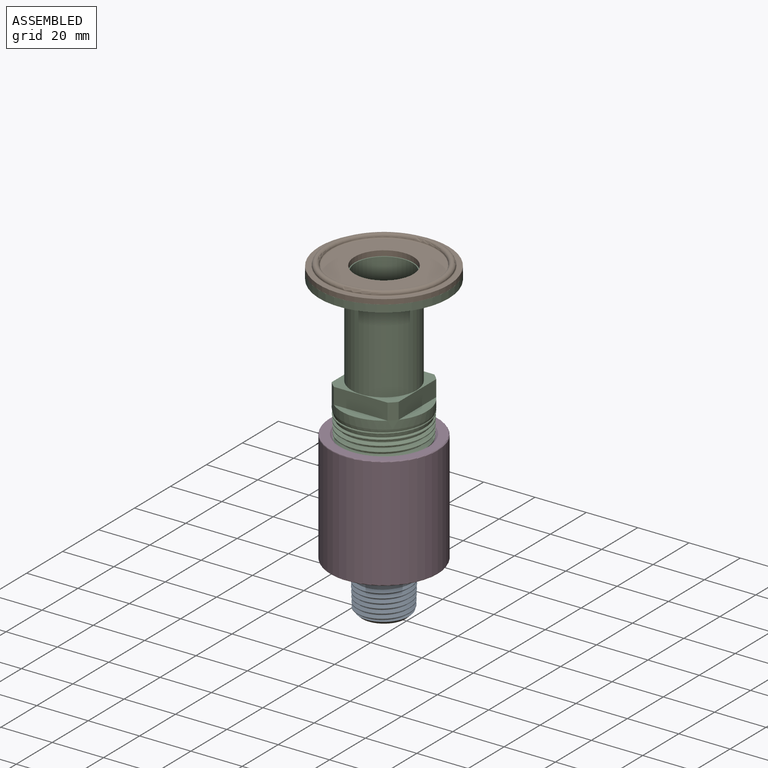
[diagram: assembled view]
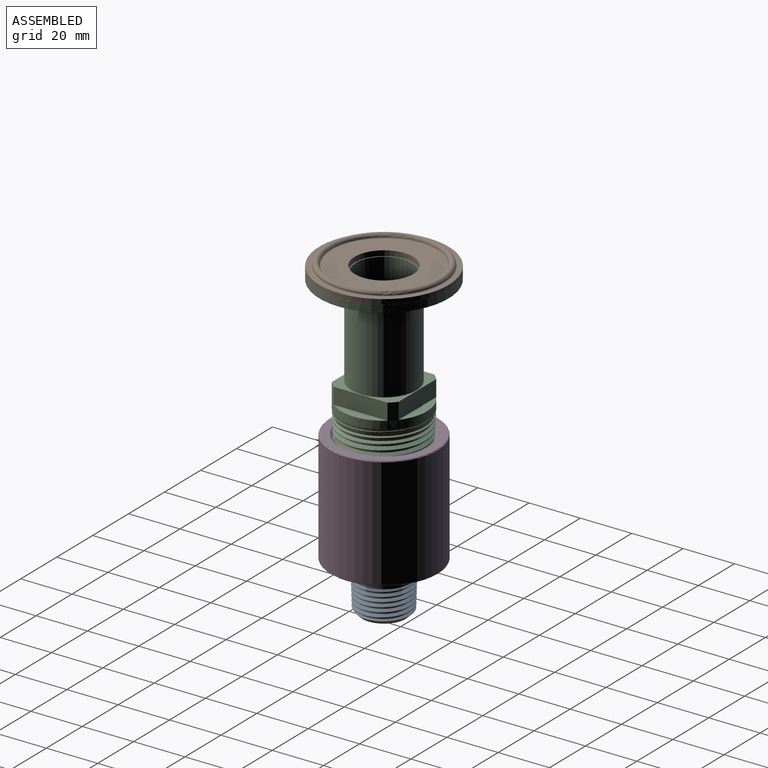
[diagram: assembled view, second angle]
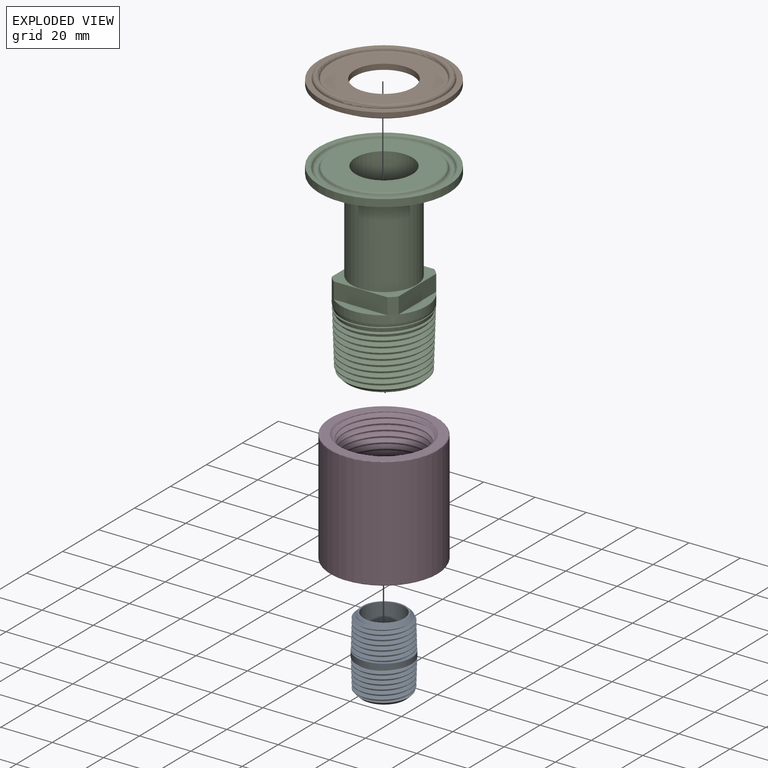
[diagram: exploded view]
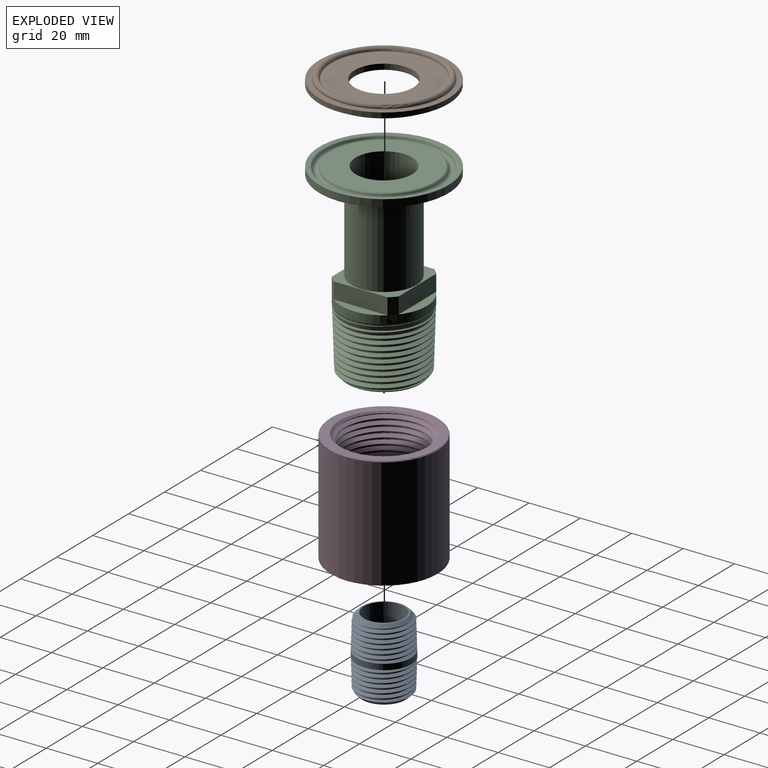
[diagram: exploded view, second angle]
ASSEMBLY  parts=4 mates=5
PART A: 20 faces, bbox 29.5x22x22 mm
  f0: cone r=10.67mm half-angle=1.5deg, axis (-1,0,0), area 85mm2, adj f1,f2,f5,f8
  f1: bspline ~21.27x21.25mm, area 554.9mm2, adj f0,f5,f6,f7,f8
  f2: bspline ~21.28x21.26mm, area 20.1mm2, adj f0,f3,f5,f8
  f3: bspline ~21.21x21.19mm, area 554.7mm2, adj f2,f5,f7,f8
  f4: plane 16.86x16.86mm, normal (1,0,0), area 27.2mm2, adj f6,f10
  f5: cone r=8.43mm half-angle=46.5deg, axis (-1,0,0), area 12.5mm2, adj f0,f1,f2,f3,f6
  f6: cone r=8.43mm half-angle=46.5deg, axis (-1,0,0), area 89.6mm2, adj f1,f4,f5,f7
  f7: bspline ~18.87x18.85mm, area 91.1mm2, adj f1,f3,f6,f8
  f8: plane 22.03x22.03mm, normal (1,0,0), area 40.9mm2, adj f0,f1,f2,f3,f7,f9
  f9: cylinder r=10.67mm len=21.34mm, axis (-1,0,0), area 152mm2, adj f8,f19
  f10: cylinder r=7.9mm len=28.58mm, axis (1,0,0), area 1418.3mm2, adj f4,f15
  f11: cone r=10.67mm half-angle=1.5deg, axis (1,0,0), area 85mm2, adj f12,f13,f16,f19
  f12: bspline ~21.27x21.25mm, area 554.9mm2, adj f11,f16,f17,f18,f19
  f13: bspline ~21.28x21.26mm, area 20.1mm2, adj f11,f14,f16,f19
  f14: bspline ~21.21x21.19mm, area 554.7mm2, adj f13,f16,f18,f19
  f15: plane 16.86x16.86mm, normal (-1,0,0), area 27.2mm2, adj f10,f17
  f16: cone r=8.43mm half-angle=46.5deg, axis (1,0,0), area 12.5mm2, adj f11,f12,f13,f14,f17
  f17: cone r=8.43mm half-angle=46.5deg, axis (1,0,0), area 89.6mm2, adj f12,f15,f16,f18
  f18: bspline ~18.87x18.85mm, area 91.1mm2, adj f12,f14,f17,f19
  f19: plane 22.03x22.03mm, normal (-1,0,0), area 40.9mm2, adj f9,f11,f12,f13,f14,f18
PART B: 12 faces, bbox 5.2x51.2x51.2 mm
  f0: plane 50.39x50.39mm, normal (-1,0,0), area 275.4mm2, adj f1,f11
  f1: torus R=23.39mm, axis (-1,0,0), area 88.8mm2, adj f0,f2
  f2: torus R=21.82mm, axis (-1,0,0), area 512.2mm2, adj f1,f3
  f3: torus R=20.25mm, axis (-1,0,0), area 74.7mm2, adj f2,f4
  f4: plane 40.49x40.49mm, normal (-1,0,0), area 877.3mm2, adj f3,f5
  f5: cylinder r=11.43mm len=22.86mm, axis (-1,0,0), area 155.1mm2, adj f4,f6
  f6: plane 40.49x40.49mm, normal (1,0,0), area 877.3mm2, adj f5,f7
  f7: torus R=20.25mm, axis (-1,0,0), area 74.7mm2, adj f6,f8
  f8: torus R=21.82mm, axis (-1,0,0), area 512.2mm2, adj f7,f9
  f9: torus R=23.39mm, axis (-1,0,0), area 88.8mm2, adj f8,f10
  f10: plane 50.39x50.39mm, normal (1,0,0), area 275.4mm2, adj f9,f11
  f11: cylinder r=25.2mm len=50.39mm, axis (-1,0,0), area 301.6mm2, adj f0,f10
PART C: 29 faces, bbox 51.5x51.5x73.8 mm
  f0: plane 26.04x26.04mm, normal (0,0,1), area 159mm2, adj f1,f6,f20,f22,f24,f27
  f1: cylinder r=16.7mm len=33.4mm, axis (0,0,-1), area 425.1mm2, adj f0,f14,f15,f20,f21,f22,f23,f24
  f2: plane 28.5x28.5mm, normal (0,0,-1), area 80.2mm2, adj f19,f28
  f3: plane 50.39x50.39mm, normal (0,0,1), area 213.6mm2, adj f4,f13
  f4: cylinder r=25.2mm len=50.39mm, axis (0,0,1), area 450.4mm2, adj f3,f5
  f5: cone r=12.7mm half-angle=70deg, axis (0,0,1), area 1583.3mm2, adj f4,f6
  f6: cylinder r=12.7mm len=31.1mm, axis (0,0,1), area 2481.7mm2, adj f0,f5
  f7: cylinder r=11.05mm len=70.75mm, axis (0,0,1), area 4911.8mm2, adj f8,f28
  f8: plane 39.66x39.66mm, normal (0,0,1), area 851.6mm2, adj f7,f9
  f9: torus R=19.83mm, axis (0,0,1), area 117.1mm2, adj f8,f10
  f10: cone r=20.72mm half-angle=23deg, axis (0,0,-1), area 55.4mm2, adj f9,f11
  f11: torus R=21.82mm, axis (0,0,1), area 382.8mm2, adj f10,f12
  f12: cone r=23.08mm half-angle=23deg, axis (0,0,1), area 61.7mm2, adj f11,f13
  f13: torus R=23.81mm, axis (0,0,1), area 135.4mm2, adj f3,f12
  f14: cone r=16.7mm half-angle=15deg, axis (0,0,1), area 308.8mm2, adj f1,f16,f17,f18
  f15: cone r=16.7mm half-angle=1.8deg, axis (0,0,1), area 308.9mm2, adj f1,f17,f18,f19
  f16: bspline ~30.34x30.31mm, area 218.8mm2, adj f14,f17,f18,f19
  f17: bspline ~33.84x33.78mm, area 1546.8mm2, adj f14,f15,f16,f19
  f18: bspline ~33.85x33.85mm, area 1483.7mm2, adj f14,f15,f16,f19
  f19: cone r=14.25mm half-angle=45deg, axis (0,0,1), area 134.1mm2, adj f2,f15,f16,f17,f18
  f20: plane 20.92x6.35mm, normal (0,-1,0), area 132.9mm2, adj f0,f1,f21
  f21: plane 20.92x3.68mm, normal (0,0,1), area 52.6mm2, adj f1,f20
  f22: plane 20.92x6.35mm, normal (1,0,0), area 132.9mm2, adj f0,f1,f23
  f23: plane 20.92x3.68mm, normal (0,0,1), area 52.6mm2, adj f1,f22
  f24: plane 20.92x6.35mm, normal (0,1,0), area 132.9mm2, adj f0,f1,f25
  f25: plane 20.92x3.68mm, normal (0,0,1), area 52.6mm2, adj f1,f24
  f26: plane 20.92x3.68mm, normal (0,0,1), area 52.6mm2, adj f1,f27
  f27: plane 20.92x6.35mm, normal (-1,0,0), area 132.9mm2, adj f0,f1,f26
  f28: cone r=13.32mm half-angle=45deg, axis (0,0,-1), area 246.2mm2, adj f2,f7
PART D: 19 faces, bbox 45.4x45.4x45.4 mm
  f0: bspline ~22.38x22.24mm, area 728.6mm2, adj f1,f7,f8,f14,f16
  f1: bspline ~19.93x19.86mm, area 110.3mm2, adj f0,f2,f14,f16
  f2: bspline ~22.34x22.26mm, area 717mm2, adj f1,f8,f14,f16
  f3: bspline ~35.05x35.02mm, area 1373.2mm2, adj f4,f10,f13,f15
  f4: bspline ~31.78x31.75mm, area 212.3mm2, adj f3,f5,f13,f15
  f5: bspline ~34.78x34.75mm, area 1385.5mm2, adj f4,f9,f10,f13,f15
  f6: plane 41.15x41.15mm, normal (0,0,-1), area 940.2mm2, adj f16,f17
  f7: cylinder r=10.67mm len=21.34mm, axis (0,0,1), area 422.3mm2, adj f0,f8,f9,f14
  f8: cone r=10.67mm half-angle=1.5deg, axis (0,0,-1), area 145.1mm2, adj f0,f2,f7,f16
  f9: cone r=10.67mm half-angle=63.8deg, axis (0,0,1), area 555.8mm2, adj f5,f7,f10,f13
  f10: cone r=16.7mm half-angle=1.5deg, axis (0,0,1), area 266.6mm2, adj f3,f5,f9,f13,f15
  f11: plane 41.15x41.15mm, normal (0,0,1), area 392.4mm2, adj f15,f18
  f12: cylinder r=20.96mm len=43.18mm, axis (0,0,-1), area 5685.3mm2, adj f17,f18
  f13: plane 1.46x1.43mm, normal (-1,0,0), area 1.2mm2, adj f3,f4,f5,f9,f10
  f14: plane 1.59x1.18mm, normal (1,0,0), area 1.1mm2, adj f0,f1,f2,f7
  f15: cone r=17.27mm half-angle=45deg, axis (0,0,1), area 121.1mm2, adj f3,f4,f5,f10,f11
  f16: cone r=11.14mm half-angle=45deg, axis (0,0,-1), area 63.1mm2, adj f0,f1,f2,f6,f8
  f17: torus R=20.57mm, axis (0,0,1), area 78.3mm2, adj f6,f12
  f18: torus R=20.57mm, axis (0,0,1), area 78.3mm2, adj f11,f12
PLACE A rot(axis=(0,1,0),90deg) t=(-31.85,87.24,-90.46)mm
PLACE B rot(axis=(0.71,0,-0.71),180deg) t=(-31.85,87.24,16.37)mm
PLACE C t=(-31.85,87.24,15.4)mm
PLACE D t=(-31.85,87.24,-63.73)mm
MATE cylindrical C.f4 <-> D.f7  axis (0,0,1) through (-31.85,87.24,-23.1)mm
MATE cylindrical A.f0 <-> D.f7  axis (0,0,-1) through (-31.85,87.24,-76.17)mm
MATE fastened A.f0 <-> D.f7  axis (0,0,-1) through (-31.85,87.24,-104.75)mm
MATE fastened C.f4 <-> D.f7  axis (0,0,1) through (-31.85,87.24,15.4)mm
MATE fastened B.f1 <-> C.f4  axis (0,0,1) through (-31.85,87.24,13.8)mm
